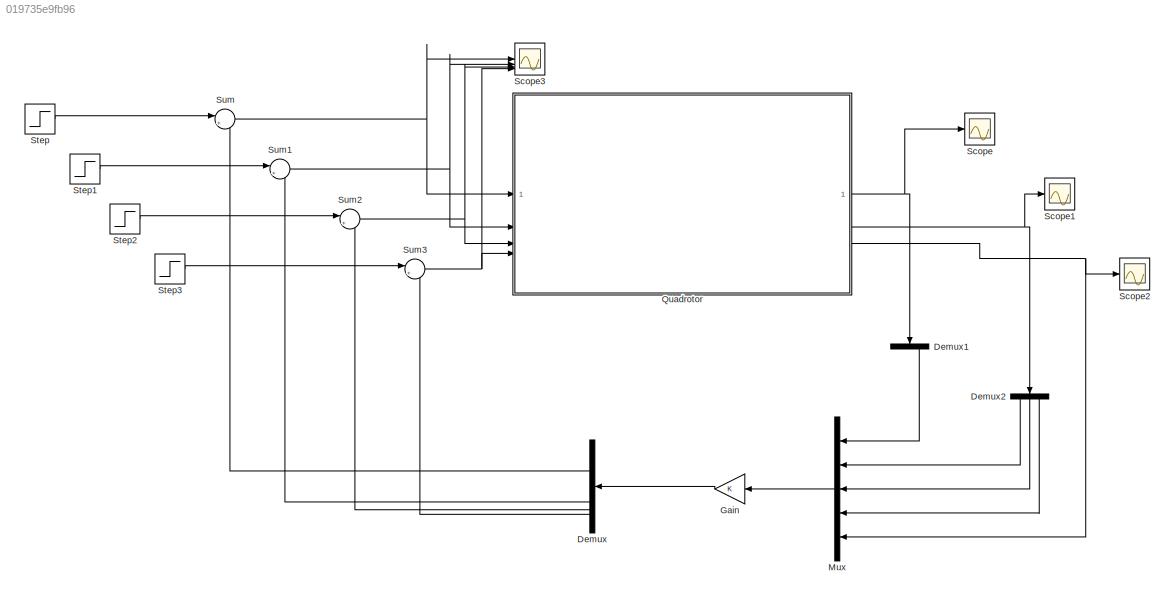
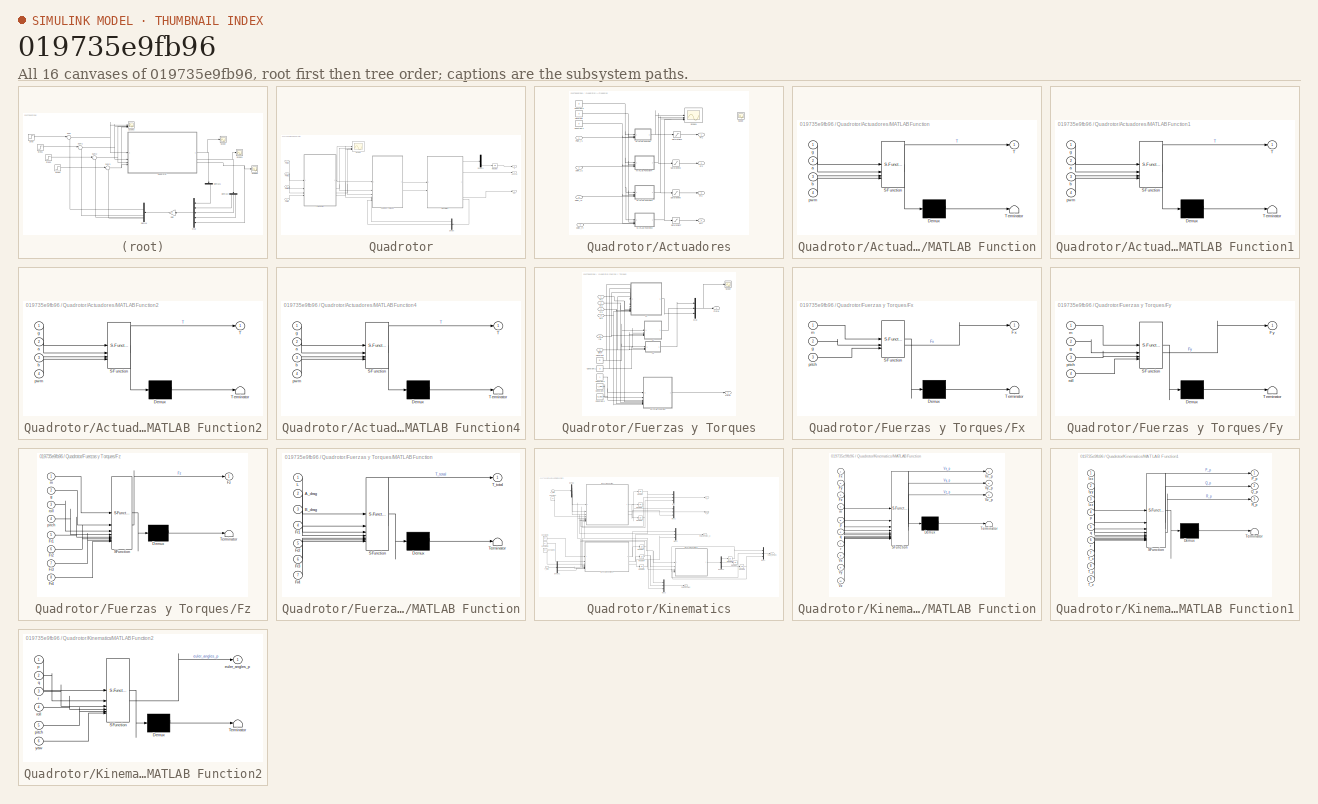
[diagram: thumbnail index - all 16 canvases of the model, root first then tree order]
MODEL slx_019735e9fb96
KIND model
CONFIG AbsTol = auto
CONFIG EnableMultiTasking = off
CONFIG FixedStep = auto
CONFIG MaxStep = auto
CONFIG MinStep = auto
CONFIG RelTol = 1e-3
CONFIG SampleTimeConstraint = Unconstrained
CONFIG SolverName = VariableStepAuto
CONFIG StartTime = 0.0
CONFIG StopTime = 10.0
BLOCK [Demux] Demux
  NameLocation = top
BLOCK [Demux] Demux1
  NameLocation = left
  Outputs = 3
BLOCK [Demux] Demux2
  NameLocation = left
  Outputs = 3
BLOCK [Gain] Gain
  Gain = K
  Multiplication = Matrix(K*u)
  NameLocation = top
BLOCK [Mux] Mux
  DisplayOption = bar
  Inputs = 5
  NameLocation = top
BLOCK [SubSystem] Quadrotor
BLOCK [SubSystem] Quadrotor/Actuadores
BLOCK [Constant] Quadrotor/Actuadores/Constant
  Value = a
BLOCK [Constant] Quadrotor/Actuadores/Constant1
  Value = b
BLOCK [Constant] Quadrotor/Actuadores/Constant2
  Value = g
BLOCK [Outport] Quadrotor/Actuadores/Fr1
BLOCK [Outport] Quadrotor/Actuadores/Fr2
  Port = 2
BLOCK [Outport] Quadrotor/Actuadores/Fr3
  Port = 3
BLOCK [Outport] Quadrotor/Actuadores/Fr4
  Port = 4
BLOCK [SubSystem] Quadrotor/Actuadores/MATLAB Function
  ErrorFcn = Stateflow.Translate.translate
  PermitHierarchicalResolution = ExplicitOnly
  SFBlockType = MATLAB Function
  TreatAsAtomicUnit = on
BLOCK [Demux] Quadrotor/Actuadores/MATLAB Function/ Demux 
  Outputs = 1
BLOCK [S-Function] Quadrotor/Actuadores/MATLAB Function/ SFunction 
  EnableBusSupport = on
  FunctionName = sf_sfun
  PortCounts = [4 2]
  SFcnIsStateOwnerBlock = off
  SFunctionDeploymentMode = off
  Tag = Stateflow S-Function 2
BLOCK [Terminator] Quadrotor/Actuadores/MATLAB Function/ Terminator 
BLOCK [Outport] Quadrotor/Actuadores/MATLAB Function/T
BLOCK [Inport] Quadrotor/Actuadores/MATLAB Function/a
  Port = 2
BLOCK [Inport] Quadrotor/Actuadores/MATLAB Function/b
  Port = 3
BLOCK [Inport] Quadrotor/Actuadores/MATLAB Function/g
BLOCK [Inport] Quadrotor/Actuadores/MATLAB Function/pwm
  Port = 4
BLOCK [SubSystem] Quadrotor/Actuadores/MATLAB Function1
  ErrorFcn = Stateflow.Translate.translate
  PermitHierarchicalResolution = ExplicitOnly
  SFBlockType = MATLAB Function
  TreatAsAtomicUnit = on
BLOCK [Demux] Quadrotor/Actuadores/MATLAB Function1/ Demux 
  Outputs = 1
BLOCK [S-Function] Quadrotor/Actuadores/MATLAB Function1/ SFunction 
  EnableBusSupport = on
  FunctionName = sf_sfun
  PortCounts = [4 2]
  SFcnIsStateOwnerBlock = off
  SFunctionDeploymentMode = off
  Tag = Stateflow S-Function 1
BLOCK [Terminator] Quadrotor/Actuadores/MATLAB Function1/ Terminator 
BLOCK [Outport] Quadrotor/Actuadores/MATLAB Function1/T
BLOCK [Inport] Quadrotor/Actuadores/MATLAB Function1/a
  Port = 2
BLOCK [Inport] Quadrotor/Actuadores/MATLAB Function1/b
  Port = 3
BLOCK [Inport] Quadrotor/Actuadores/MATLAB Function1/g
BLOCK [Inport] Quadrotor/Actuadores/MATLAB Function1/pwm
  Port = 4
BLOCK [SubSystem] Quadrotor/Actuadores/MATLAB Function2
  ErrorFcn = Stateflow.Translate.translate
  PermitHierarchicalResolution = ExplicitOnly
  SFBlockType = MATLAB Function
  TreatAsAtomicUnit = on
BLOCK [Demux] Quadrotor/Actuadores/MATLAB Function2/ Demux 
  Outputs = 1
BLOCK [S-Function] Quadrotor/Actuadores/MATLAB Function2/ SFunction 
  EnableBusSupport = on
  FunctionName = sf_sfun
  PortCounts = [4 2]
  SFcnIsStateOwnerBlock = off
  SFunctionDeploymentMode = off
  Tag = Stateflow S-Function 3
BLOCK [Terminator] Quadrotor/Actuadores/MATLAB Function2/ Terminator 
BLOCK [Outport] Quadrotor/Actuadores/MATLAB Function2/T
BLOCK [Inport] Quadrotor/Actuadores/MATLAB Function2/a
  Port = 2
BLOCK [Inport] Quadrotor/Actuadores/MATLAB Function2/b
  Port = 3
BLOCK [Inport] Quadrotor/Actuadores/MATLAB Function2/g
BLOCK [Inport] Quadrotor/Actuadores/MATLAB Function2/pwm
  Port = 4
BLOCK [SubSystem] Quadrotor/Actuadores/MATLAB Function4
  ErrorFcn = Stateflow.Translate.translate
  PermitHierarchicalResolution = ExplicitOnly
  SFBlockType = MATLAB Function
  TreatAsAtomicUnit = on
BLOCK [Demux] Quadrotor/Actuadores/MATLAB Function4/ Demux 
  Outputs = 1
BLOCK [S-Function] Quadrotor/Actuadores/MATLAB Function4/ SFunction 
  EnableBusSupport = on
  FunctionName = sf_sfun
  PortCounts = [4 2]
  SFcnIsStateOwnerBlock = off
  SFunctionDeploymentMode = off
  Tag = Stateflow S-Function 5
BLOCK [Terminator] Quadrotor/Actuadores/MATLAB Function4/ Terminator 
BLOCK [Outport] Quadrotor/Actuadores/MATLAB Function4/T
BLOCK [Inport] Quadrotor/Actuadores/MATLAB Function4/a
  Port = 2
BLOCK [Inport] Quadrotor/Actuadores/MATLAB Function4/b
  Port = 3
BLOCK [Inport] Quadrotor/Actuadores/MATLAB Function4/g
BLOCK [Inport] Quadrotor/Actuadores/MATLAB Function4/pwm
  Port = 4
BLOCK [Inport] Quadrotor/Actuadores/Pwm_r1
BLOCK [Saturate] Quadrotor/Actuadores/Saturation1
  LowerLimit = 0
  UpperLimit = 10
  ZeroCross = off
BLOCK [Saturate] Quadrotor/Actuadores/Saturation3
  LowerLimit = 0
  UpperLimit = 10
  ZeroCross = off
BLOCK [Saturate] Quadrotor/Actuadores/Saturation5
  LowerLimit = 0
  UpperLimit = 10
  ZeroCross = off
BLOCK [Saturate] Quadrotor/Actuadores/Saturation7
  LowerLimit = 0
  UpperLimit = 10
  ZeroCross = off
BLOCK [Scope] Quadrotor/Actuadores/Scope
  Floating = off
  NumInputPorts = 1
  ScopeSpecificationString = Simulink.scopes.TimeScopeBlockCfg('CurrentConfiguration', extmgr.ConfigurationSet(extmgr.Configuration('Core','General UI',true),extmgr.Configuration('Core','Source UI',true),extmgr.Configuration('Sources','WiredSimulink',true,'DataLoggingVariableName','ScopeData3'),extmgr.Configuration('Visuals','Time Domain',true,'SerializedDisplays',{struct('MinYLimReal','-1.00000','MaxYLimReal','1.00000','YLab...<+3470ch>
BLOCK [Scope] Quadrotor/Actuadores/Scope1
  Floating = off
  NumInputPorts = 4
  ScopeSpecificationString = Simulink.scopes.TimeScopeBlockCfg('CurrentConfiguration', extmgr.ConfigurationSet(extmgr.Configuration('Core','General UI',true),extmgr.Configuration('Core','Source UI',true),extmgr.Configuration('Sources','WiredSimulink',true,'DataLoggingVariableName','ScopeData4'),extmgr.Configuration('Visuals','Time Domain',true,'SerializedDisplays',{struct('MinYLimReal','-15178.54692','MaxYLimReal','1645.65995...<+3546ch>
BLOCK [Inport] Quadrotor/Actuadores/pwm_r2
  Port = 2
BLOCK [Inport] Quadrotor/Actuadores/pwm_r3
  Port = 3
BLOCK [Inport] Quadrotor/Actuadores/pwm_r4
  Port = 4
BLOCK [Outport] Quadrotor/Ax Ay Az
BLOCK [Demux] Quadrotor/Demux
  NameLocation = top
  Outputs = 3
BLOCK [Demux] Quadrotor/Demux1
  Outputs = 3
BLOCK [SubSystem] Quadrotor/Fuerzas y Torques
BLOCK [Constant] Quadrotor/Fuerzas y Torques/Constant
  Value = m
BLOCK [Constant] Quadrotor/Fuerzas y Torques/Constant1
  Value = g
BLOCK [Constant] Quadrotor/Fuerzas y Torques/Constant2
  Value = L
BLOCK [Constant] Quadrotor/Fuerzas y Torques/Constant3
  Value = A_drag
BLOCK [Constant] Quadrotor/Fuerzas y Torques/Constant4
  Value = B_drag
BLOCK [Inport] Quadrotor/Fuerzas y Torques/Fr1
BLOCK [Inport] Quadrotor/Fuerzas y Torques/Fr2
  Port = 2
BLOCK [Inport] Quadrotor/Fuerzas y Torques/Fr3
  Port = 3
BLOCK [Inport] Quadrotor/Fuerzas y Torques/Fr4
  Port = 4
BLOCK [Outport] Quadrotor/Fuerzas y Torques/Ftotal
BLOCK [SubSystem] Quadrotor/Fuerzas y Torques/Fx
  ErrorFcn = Stateflow.Translate.translate
  PermitHierarchicalResolution = ExplicitOnly
  SFBlockType = MATLAB Function
  TreatAsAtomicUnit = on
BLOCK [Demux] Quadrotor/Fuerzas y Torques/Fx/ Demux 
  Outputs = 1
BLOCK [S-Function] Quadrotor/Fuerzas y Torques/Fx/ SFunction 
  EnableBusSupport = on
  FunctionName = sf_sfun
  PortCounts = [3 2]
  SFcnIsStateOwnerBlock = off
  SFunctionDeploymentMode = off
  Tag = Stateflow S-Function 4
BLOCK [Terminator] Quadrotor/Fuerzas y Torques/Fx/ Terminator 
BLOCK [Outport] Quadrotor/Fuerzas y Torques/Fx/Fx
BLOCK [Inport] Quadrotor/Fuerzas y Torques/Fx/g
  Port = 2
BLOCK [Inport] Quadrotor/Fuerzas y Torques/Fx/m
BLOCK [Inport] Quadrotor/Fuerzas y Torques/Fx/pitch
  Port = 3
BLOCK [SubSystem] Quadrotor/Fuerzas y Torques/Fy
  ErrorFcn = Stateflow.Translate.translate
  PermitHierarchicalResolution = ExplicitOnly
  SFBlockType = MATLAB Function
  TreatAsAtomicUnit = on
BLOCK [Demux] Quadrotor/Fuerzas y Torques/Fy/ Demux 
  Outputs = 1
BLOCK [S-Function] Quadrotor/Fuerzas y Torques/Fy/ SFunction 
  EnableBusSupport = on
  FunctionName = sf_sfun
  PortCounts = [4 2]
  SFcnIsStateOwnerBlock = off
  SFunctionDeploymentMode = off
  Tag = Stateflow S-Function 6
BLOCK [Terminator] Quadrotor/Fuerzas y Torques/Fy/ Terminator 
BLOCK [Outport] Quadrotor/Fuerzas y Torques/Fy/Fy
BLOCK [Inport] Quadrotor/Fuerzas y Torques/Fy/g
  Port = 2
BLOCK [Inport] Quadrotor/Fuerzas y Torques/Fy/m
BLOCK [Inport] Quadrotor/Fuerzas y Torques/Fy/pitch
  Port = 3
BLOCK [Inport] Quadrotor/Fuerzas y Torques/Fy/roll
  Port = 4
BLOCK [SubSystem] Quadrotor/Fuerzas y Torques/Fz
  ErrorFcn = Stateflow.Translate.translate
  PermitHierarchicalResolution = ExplicitOnly
  SFBlockType = MATLAB Function
  TreatAsAtomicUnit = on
BLOCK [Demux] Quadrotor/Fuerzas y Torques/Fz/ Demux 
  Outputs = 1
BLOCK [S-Function] Quadrotor/Fuerzas y Torques/Fz/ SFunction 
  EnableBusSupport = on
  FunctionName = sf_sfun
  PortCounts = [8 2]
  SFcnIsStateOwnerBlock = off
  SFunctionDeploymentMode = off
  Tag = Stateflow S-Function 7
BLOCK [Terminator] Quadrotor/Fuerzas y Torques/Fz/ Terminator 
BLOCK [Inport] Quadrotor/Fuerzas y Torques/Fz/Fr1
  Port = 5
BLOCK [Inport] Quadrotor/Fuerzas y Torques/Fz/Fr2
  Port = 6
BLOCK [Inport] Quadrotor/Fuerzas y Torques/Fz/Fr3
  Port = 7
BLOCK [Inport] Quadrotor/Fuerzas y Torques/Fz/Fr4
  Port = 8
BLOCK [Outport] Quadrotor/Fuerzas y Torques/Fz/Fz
BLOCK [Inport] Quadrotor/Fuerzas y Torques/Fz/g
  Port = 2
BLOCK [Inport] Quadrotor/Fuerzas y Torques/Fz/m
BLOCK [Inport] Quadrotor/Fuerzas y Torques/Fz/pitch
  Port = 4
BLOCK [Inport] Quadrotor/Fuerzas y Torques/Fz/roll
  Port = 3
BLOCK [SubSystem] Quadrotor/Fuerzas y Torques/MATLAB Function
  ErrorFcn = Stateflow.Translate.translate
  PermitHierarchicalResolution = ExplicitOnly
  SFBlockType = MATLAB Function
  TreatAsAtomicUnit = on
BLOCK [Demux] Quadrotor/Fuerzas y Torques/MATLAB Function/ Demux 
  Outputs = 1
BLOCK [S-Function] Quadrotor/Fuerzas y Torques/MATLAB Function/ SFunction 
  EnableBusSupport = on
  FunctionName = sf_sfun
  PortCounts = [7 2]
  SFcnIsStateOwnerBlock = off
  SFunctionDeploymentMode = off
  Tag = Stateflow S-Function 8
BLOCK [Terminator] Quadrotor/Fuerzas y Torques/MATLAB Function/ Terminator 
BLOCK [Inport] Quadrotor/Fuerzas y Torques/MATLAB Function/A_drag
  Port = 2
BLOCK [Inport] Quadrotor/Fuerzas y Torques/MATLAB Function/B_drag
  Port = 3
BLOCK [Inport] Quadrotor/Fuerzas y Torques/MATLAB Function/Fr1
  Port = 4
BLOCK [Inport] Quadrotor/Fuerzas y Torques/MATLAB Function/Fr2
  Port = 5
BLOCK [Inport] Quadrotor/Fuerzas y Torques/MATLAB Function/Fr3
  Port = 6
BLOCK [Inport] Quadrotor/Fuerzas y Torques/MATLAB Function/Fr4
  Port = 7
BLOCK [Inport] Quadrotor/Fuerzas y Torques/MATLAB Function/L
BLOCK [Outport] Quadrotor/Fuerzas y Torques/MATLAB Function/T_total
BLOCK [Mux] Quadrotor/Fuerzas y Torques/Mux
  DisplayOption = bar
  Inputs = 3
BLOCK [Scope] Quadrotor/Fuerzas y Torques/Scope
  Floating = off
  NumInputPorts = 1
  ScopeSpecificationString = Simulink.scopes.TimeScopeBlockCfg('CurrentConfiguration', extmgr.ConfigurationSet(extmgr.Configuration('Core','General UI',true),extmgr.Configuration('Core','Source UI',true),extmgr.Configuration('Sources','WiredSimulink',true,'DataLoggingVariableName','ScopeData2'),extmgr.Configuration('Visuals','Time Domain',true,'SerializedDisplays',{struct('MinYLimReal','-2.45','MaxYLimReal','0.27222','YLabelR...<+1727ch>
BLOCK [Outport] Quadrotor/Fuerzas y Torques/Ttotal
  Port = 2
BLOCK [Inport] Quadrotor/Fuerzas y Torques/pitch
  Port = 6
BLOCK [Inport] Quadrotor/Fuerzas y Torques/roll
  Port = 5
BLOCK [Integrator] Quadrotor/Integrator
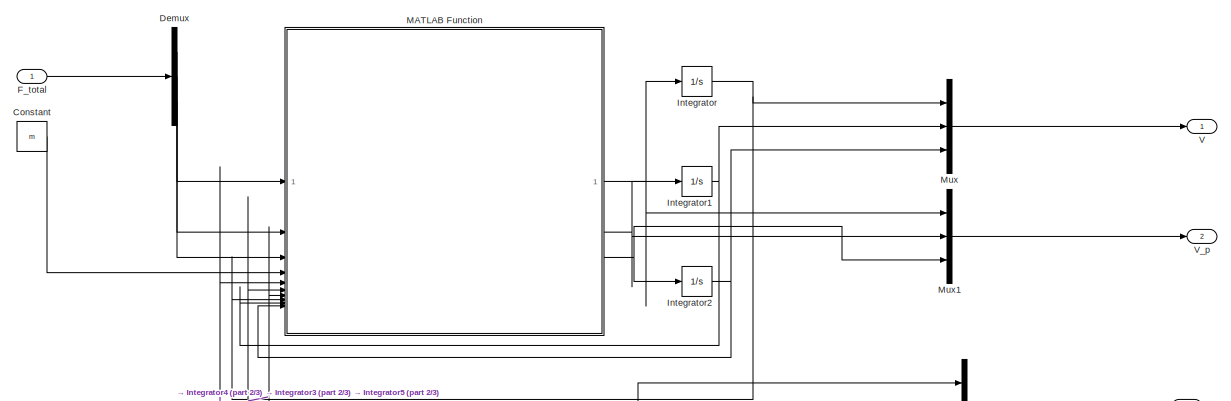
[diagram: Quadrotor/Kinematics - part 1/3, top center region]
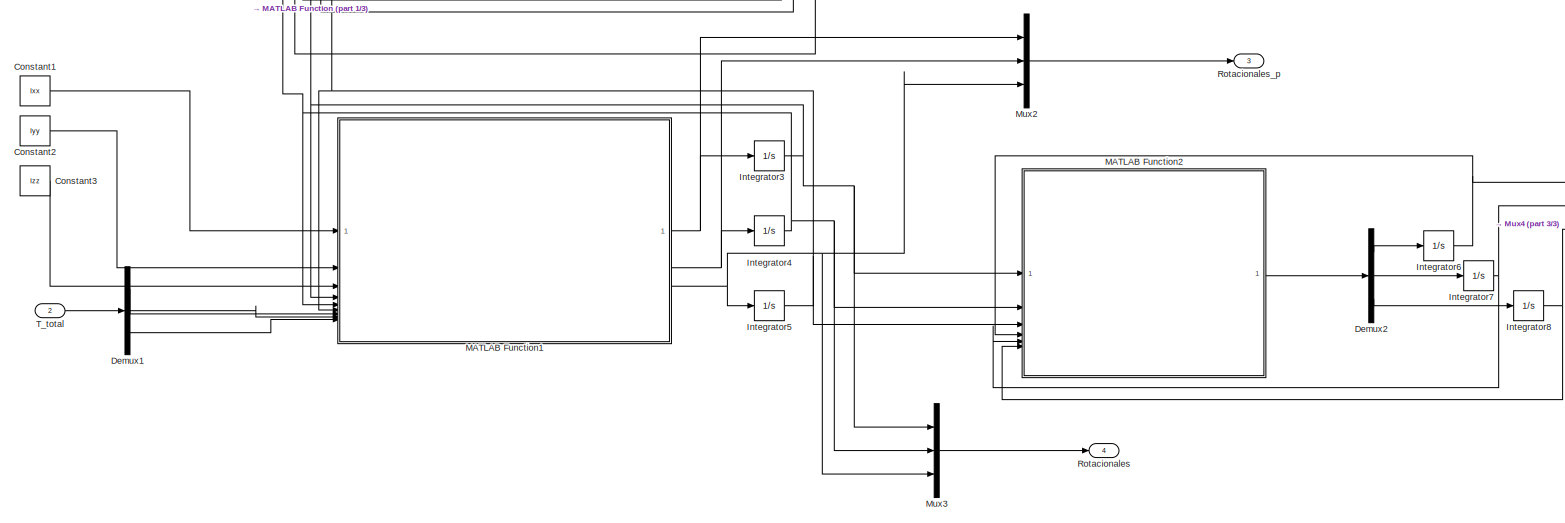
[diagram: Quadrotor/Kinematics - part 2/3, full width, bottom band]
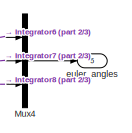
[diagram: Quadrotor/Kinematics - part 3/3, middle right region]
BLOCK [SubSystem] Quadrotor/Kinematics
BLOCK [Constant] Quadrotor/Kinematics/Constant
  Value = m
BLOCK [Constant] Quadrotor/Kinematics/Constant1
  Value = Ixx
BLOCK [Constant] Quadrotor/Kinematics/Constant2
  Value = Iyy
BLOCK [Constant] Quadrotor/Kinematics/Constant3
  Value = Izz
BLOCK [Demux] Quadrotor/Kinematics/Demux
  Outputs = 3
BLOCK [Demux] Quadrotor/Kinematics/Demux1
  Outputs = 3
BLOCK [Demux] Quadrotor/Kinematics/Demux2
  Outputs = 3
BLOCK [Inport] Quadrotor/Kinematics/F_total
BLOCK [Integrator] Quadrotor/Kinematics/Integrator
BLOCK [Integrator] Quadrotor/Kinematics/Integrator1
BLOCK [Integrator] Quadrotor/Kinematics/Integrator2
BLOCK [Integrator] Quadrotor/Kinematics/Integrator3
BLOCK [Integrator] Quadrotor/Kinematics/Integrator4
BLOCK [Integrator] Quadrotor/Kinematics/Integrator5
BLOCK [Integrator] Quadrotor/Kinematics/Integrator6
BLOCK [Integrator] Quadrotor/Kinematics/Integrator7
BLOCK [Integrator] Quadrotor/Kinematics/Integrator8
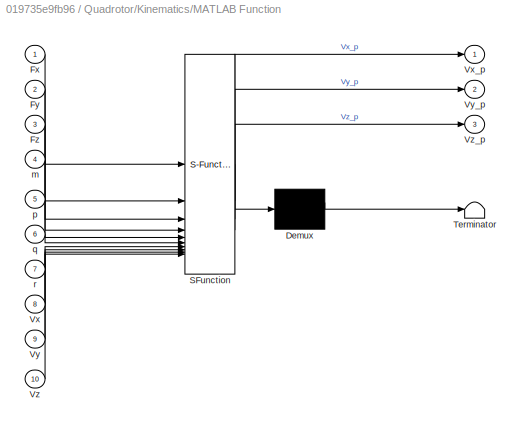
BLOCK [SubSystem] Quadrotor/Kinematics/MATLAB Function
  ErrorFcn = Stateflow.Translate.translate
  PermitHierarchicalResolution = ExplicitOnly
  SFBlockType = MATLAB Function
  TreatAsAtomicUnit = on
BLOCK [Demux] Quadrotor/Kinematics/MATLAB Function/ Demux 
  Outputs = 1
BLOCK [S-Function] Quadrotor/Kinematics/MATLAB Function/ SFunction 
  EnableBusSupport = on
  FunctionName = sf_sfun
  PortCounts = [10 4]
  SFcnIsStateOwnerBlock = off
  SFunctionDeploymentMode = off
  Tag = Stateflow S-Function 9
BLOCK [Terminator] Quadrotor/Kinematics/MATLAB Function/ Terminator 
BLOCK [Inport] Quadrotor/Kinematics/MATLAB Function/Fx
BLOCK [Inport] Quadrotor/Kinematics/MATLAB Function/Fy
  Port = 2
BLOCK [Inport] Quadrotor/Kinematics/MATLAB Function/Fz
  Port = 3
BLOCK [Inport] Quadrotor/Kinematics/MATLAB Function/Vx
  Port = 8
BLOCK [Outport] Quadrotor/Kinematics/MATLAB Function/Vx_p
BLOCK [Inport] Quadrotor/Kinematics/MATLAB Function/Vy
  Port = 9
BLOCK [Outport] Quadrotor/Kinematics/MATLAB Function/Vy_p
  Port = 2
BLOCK [Inport] Quadrotor/Kinematics/MATLAB Function/Vz
  Port = 10
BLOCK [Outport] Quadrotor/Kinematics/MATLAB Function/Vz_p
  Port = 3
BLOCK [Inport] Quadrotor/Kinematics/MATLAB Function/m
  Port = 4
BLOCK [Inport] Quadrotor/Kinematics/MATLAB Function/p
  Port = 5
BLOCK [Inport] Quadrotor/Kinematics/MATLAB Function/q
  Port = 6
BLOCK [Inport] Quadrotor/Kinematics/MATLAB Function/r
  Port = 7
BLOCK [SubSystem] Quadrotor/Kinematics/MATLAB Function1
  ErrorFcn = Stateflow.Translate.translate
  PermitHierarchicalResolution = ExplicitOnly
  SFBlockType = MATLAB Function
  TreatAsAtomicUnit = on
BLOCK [Demux] Quadrotor/Kinematics/MATLAB Function1/ Demux 
  Outputs = 1
BLOCK [S-Function] Quadrotor/Kinematics/MATLAB Function1/ SFunction 
  EnableBusSupport = on
  FunctionName = sf_sfun
  PortCounts = [9 4]
  SFcnIsStateOwnerBlock = off
  SFunctionDeploymentMode = off
  Tag = Stateflow S-Function 10
BLOCK [Terminator] Quadrotor/Kinematics/MATLAB Function1/ Terminator 
BLOCK [Inport] Quadrotor/Kinematics/MATLAB Function1/Ixx
BLOCK [Inport] Quadrotor/Kinematics/MATLAB Function1/Iyy
  Port = 2
BLOCK [Inport] Quadrotor/Kinematics/MATLAB Function1/Izz
  Port = 3
BLOCK [Outport] Quadrotor/Kinematics/MATLAB Function1/P_p
BLOCK [Outport] Quadrotor/Kinematics/MATLAB Function1/Q_p
  Port = 2
BLOCK [Outport] Quadrotor/Kinematics/MATLAB Function1/R_p
  Port = 3
BLOCK [Inport] Quadrotor/Kinematics/MATLAB Function1/T_x
  Port = 7
BLOCK [Inport] Quadrotor/Kinematics/MATLAB Function1/T_y
  Port = 8
BLOCK [Inport] Quadrotor/Kinematics/MATLAB Function1/T_z
  Port = 9
BLOCK [Inport] Quadrotor/Kinematics/MATLAB Function1/p
  Port = 4
BLOCK [Inport] Quadrotor/Kinematics/MATLAB Function1/q
  Port = 5
BLOCK [Inport] Quadrotor/Kinematics/MATLAB Function1/r
  Port = 6
BLOCK [SubSystem] Quadrotor/Kinematics/MATLAB Function2
  ErrorFcn = Stateflow.Translate.translate
  PermitHierarchicalResolution = ExplicitOnly
  SFBlockType = MATLAB Function
  TreatAsAtomicUnit = on
BLOCK [Demux] Quadrotor/Kinematics/MATLAB Function2/ Demux 
  Outputs = 1
BLOCK [S-Function] Quadrotor/Kinematics/MATLAB Function2/ SFunction 
  EnableBusSupport = on
  FunctionName = sf_sfun
  PortCounts = [6 2]
  SFcnIsStateOwnerBlock = off
  SFunctionDeploymentMode = off
  Tag = Stateflow S-Function 11
BLOCK [Terminator] Quadrotor/Kinematics/MATLAB Function2/ Terminator 
BLOCK [Outport] Quadrotor/Kinematics/MATLAB Function2/euler_angles_p
BLOCK [Inport] Quadrotor/Kinematics/MATLAB Function2/p
BLOCK [Inport] Quadrotor/Kinematics/MATLAB Function2/pitch
  Port = 5
BLOCK [Inport] Quadrotor/Kinematics/MATLAB Function2/q
  Port = 2
BLOCK [Inport] Quadrotor/Kinematics/MATLAB Function2/r
  Port = 3
BLOCK [Inport] Quadrotor/Kinematics/MATLAB Function2/roll
  Port = 4
BLOCK [Inport] Quadrotor/Kinematics/MATLAB Function2/yaw
  Port = 6
BLOCK [Mux] Quadrotor/Kinematics/Mux
  DisplayOption = bar
  Inputs = 3
BLOCK [Mux] Quadrotor/Kinematics/Mux1
  DisplayOption = bar
  Inputs = 3
BLOCK [Mux] Quadrotor/Kinematics/Mux2
  DisplayOption = bar
  Inputs = 3
BLOCK [Mux] Quadrotor/Kinematics/Mux3
  DisplayOption = bar
  Inputs = 3
BLOCK [Mux] Quadrotor/Kinematics/Mux4
  DisplayOption = bar
  Inputs = 3
BLOCK [Outport] Quadrotor/Kinematics/Rotacionales
  Port = 4
BLOCK [Outport] Quadrotor/Kinematics/Rotacionales_p
  Port = 3
BLOCK [Inport] Quadrotor/Kinematics/T_total
  Port = 2
BLOCK [Outport] Quadrotor/Kinematics/V
BLOCK [Outport] Quadrotor/Kinematics/V_p
  Port = 2
BLOCK [Outport] Quadrotor/Kinematics/euler_angles
  Port = 5
BLOCK [Inport] Quadrotor/PWM1
BLOCK [Inport] Quadrotor/PWM2
  Port = 2
BLOCK [Inport] Quadrotor/PWM3
  Port = 3
BLOCK [Inport] Quadrotor/PWM4
  Port = 4
BLOCK [Scope] Quadrotor/Scope
  Floating = off
  NumInputPorts = 4
  ScopeSpecificationString = Simulink.scopes.TimeScopeBlockCfg('CurrentConfiguration', extmgr.ConfigurationSet(extmgr.Configuration('Core','General UI',true),extmgr.Configuration('Core','Source UI',true),extmgr.Configuration('Sources','WiredSimulink',true),extmgr.Configuration('Visuals','Time Domain',true,'SerializedDisplays',{struct('MinYLimReal','-1.00000','MaxYLimReal','1.00000','YLabelReal','','MinYLimMag','0.00000','MaxY...<+3360ch>
BLOCK [Outport] Quadrotor/Z
  Port = 3
BLOCK [Outport] Quadrotor/p q r
  Port = 2
BLOCK [Scope] Scope
  Floating = off
  NumInputPorts = 1
  ScopeSpecificationString = Simulink.scopes.TimeScopeBlockCfg('CurrentConfiguration', extmgr.ConfigurationSet(extmgr.Configuration('Core','General UI',true),extmgr.Configuration('Core','Source UI',true),extmgr.Configuration('Sources','WiredSimulink',true,'DataLoggingVariableName','ScopeData1'),extmgr.Configuration('Visuals','Time Domain',true,'SerializedDisplays',{struct('MinYLimReal','-11.025','MaxYLimReal','1.225','YLabelR...<+1431ch>
BLOCK [Scope] Scope1
  Floating = off
  NumInputPorts = 1
  ScopeSpecificationString = Simulink.scopes.TimeScopeBlockCfg('CurrentConfiguration', extmgr.ConfigurationSet(extmgr.Configuration('Core','General UI',true),extmgr.Configuration('Core','Source UI',true),extmgr.Configuration('Sources','WiredSimulink',true,'DataLoggingVariableName','ScopeData2'),extmgr.Configuration('Visuals','Time Domain',true,'SerializedDisplays',{struct('MinYLimReal','-1.00000','MaxYLimReal','1.00000','YLab...<+1439ch>
BLOCK [Scope] Scope2
  Floating = off
  NumInputPorts = 1
  ScopeSpecificationString = Simulink.scopes.TimeScopeBlockCfg('CurrentConfiguration', extmgr.ConfigurationSet(extmgr.Configuration('Core','General UI',true),extmgr.Configuration('Core','Source UI',true),extmgr.Configuration('Sources','WiredSimulink',true,'DataLoggingVariableName','ScopeData3'),extmgr.Configuration('Visuals','Time Domain',true,'SerializedDisplays',{struct('MinYLimReal','-551.25','MaxYLimReal','61.25','YLabelR...<+2223ch>
BLOCK [Scope] Scope3
  Floating = off
  NumInputPorts = 4
  ScopeSpecificationString = Simulink.scopes.TimeScopeBlockCfg('CurrentConfiguration', extmgr.ConfigurationSet(extmgr.Configuration('Core','General UI',true),extmgr.Configuration('Core','Source UI',true),extmgr.Configuration('Sources','WiredSimulink',true,'DataLoggingVariableName','ScopeData1'),extmgr.Configuration('Visuals','Time Domain',true,'SerializedDisplays',{struct('MinYLimReal','-10','MaxYLimReal','10','YLabelReal',''...<+3485ch>
BLOCK [Step] Step
  After = Po
  SampleTime = 0
  Time = 0
BLOCK [Step] Step1
  After = Po
  SampleTime = 0
  Time = 0
BLOCK [Step] Step2
  After = Po
  SampleTime = 0
  Time = 0
BLOCK [Step] Step3
  After = Po
  SampleTime = 0
  Time = 0
BLOCK [Sum] Sum
  Inputs = |++
BLOCK [Sum] Sum1
  Inputs = |++
BLOCK [Sum] Sum2
  Inputs = |++
BLOCK [Sum] Sum3
  Inputs = |++
LINE Demux1:3 -> Mux:1
LINE Demux2:1 -> Mux:2
LINE Demux2:2 -> Mux:3
LINE Demux2:3 -> Mux:4
LINE Demux:1 -> Sum:2
LINE Demux:2 -> Sum1:2
LINE Demux:3 -> Sum2:2
LINE Demux:4 -> Sum3:2
LINE Gain:1 -> Demux:1
LINE Mux:1 -> Gain:1
NET Quadrotor/Actuadores/Constant1:1 -> Quadrotor/Actuadores/MATLAB Function1:3, Quadrotor/Actuadores/MATLAB Function2:3, Quadrotor/Actuadores/MATLAB Function4:3, Quadrotor/Actuadores/MATLAB Function:3
NET Quadrotor/Actuadores/Constant2:1 -> Quadrotor/Actuadores/MATLAB Function1:1, Quadrotor/Actuadores/MATLAB Function2:1, Quadrotor/Actuadores/MATLAB Function4:1, Quadrotor/Actuadores/MATLAB Function:1
NET Quadrotor/Actuadores/Constant:1 -> Quadrotor/Actuadores/MATLAB Function1:2, Quadrotor/Actuadores/MATLAB Function2:2, Quadrotor/Actuadores/MATLAB Function4:2, Quadrotor/Actuadores/MATLAB Function:2
NET Quadrotor/Actuadores/MATLAB Function1:1 -> Quadrotor/Actuadores/Saturation5:1, Quadrotor/Actuadores/Scope1:3
NET Quadrotor/Actuadores/MATLAB Function2:1 -> Quadrotor/Actuadores/Saturation7:1, Quadrotor/Actuadores/Scope1:4
NET Quadrotor/Actuadores/MATLAB Function4:1 -> Quadrotor/Actuadores/Saturation3:1, Quadrotor/Actuadores/Scope1:2
NET Quadrotor/Actuadores/MATLAB Function:1 -> Quadrotor/Actuadores/Saturation1:1, Quadrotor/Actuadores/Scope1:1
LINE Quadrotor/Actuadores/Pwm_r1:1 -> Quadrotor/Actuadores/MATLAB Function:4
LINE Quadrotor/Actuadores/Saturation1:1 -> Quadrotor/Actuadores/Fr1:1
LINE Quadrotor/Actuadores/Saturation3:1 -> Quadrotor/Actuadores/Fr2:1
LINE Quadrotor/Actuadores/Saturation5:1 -> Quadrotor/Actuadores/Fr3:1
LINE Quadrotor/Actuadores/Saturation7:1 -> Quadrotor/Actuadores/Fr4:1
LINE Quadrotor/Actuadores/pwm_r2:1 -> Quadrotor/Actuadores/MATLAB Function4:4
LINE Quadrotor/Actuadores/pwm_r3:1 -> Quadrotor/Actuadores/MATLAB Function1:4
LINE Quadrotor/Actuadores/pwm_r4:1 -> Quadrotor/Actuadores/MATLAB Function2:4
NET Quadrotor/Actuadores:1 -> Quadrotor/Fuerzas y Torques:1, Quadrotor/Scope:1
NET Quadrotor/Actuadores:2 -> Quadrotor/Fuerzas y Torques:2, Quadrotor/Scope:2
NET Quadrotor/Actuadores:3 -> Quadrotor/Fuerzas y Torques:3, Quadrotor/Scope:3
NET Quadrotor/Actuadores:4 -> Quadrotor/Fuerzas y Torques:4, Quadrotor/Scope:4
LINE Quadrotor/Demux1:3 -> Quadrotor/Integrator:1
LINE Quadrotor/Demux:1 -> Quadrotor/Fuerzas y Torques:5
LINE Quadrotor/Demux:2 -> Quadrotor/Fuerzas y Torques:6
NET Quadrotor/Fuerzas y Torques/Constant1:1 -> Quadrotor/Fuerzas y Torques/Fx:2, Quadrotor/Fuerzas y Torques/Fy:2, Quadrotor/Fuerzas y Torques/Fz:2
LINE Quadrotor/Fuerzas y Torques/Constant2:1 -> Quadrotor/Fuerzas y Torques/MATLAB Function:1
LINE Quadrotor/Fuerzas y Torques/Constant3:1 -> Quadrotor/Fuerzas y Torques/MATLAB Function:2
LINE Quadrotor/Fuerzas y Torques/Constant4:1 -> Quadrotor/Fuerzas y Torques/MATLAB Function:3
NET Quadrotor/Fuerzas y Torques/Constant:1 -> Quadrotor/Fuerzas y Torques/Fx:1, Quadrotor/Fuerzas y Torques/Fy:1, Quadrotor/Fuerzas y Torques/Fz:1
NET Quadrotor/Fuerzas y Torques/Fr1:1 -> Quadrotor/Fuerzas y Torques/Fz:5, Quadrotor/Fuerzas y Torques/MATLAB Function:4
NET Quadrotor/Fuerzas y Torques/Fr2:1 -> Quadrotor/Fuerzas y Torques/Fz:6, Quadrotor/Fuerzas y Torques/MATLAB Function:5
NET Quadrotor/Fuerzas y Torques/Fr3:1 -> Quadrotor/Fuerzas y Torques/Fz:7, Quadrotor/Fuerzas y Torques/MATLAB Function:6
NET Quadrotor/Fuerzas y Torques/Fr4:1 -> Quadrotor/Fuerzas y Torques/Fz:8, Quadrotor/Fuerzas y Torques/MATLAB Function:7
LINE Quadrotor/Fuerzas y Torques/Fx:1 -> Quadrotor/Fuerzas y Torques/Mux:1
LINE Quadrotor/Fuerzas y Torques/Fy:1 -> Quadrotor/Fuerzas y Torques/Mux:2
LINE Quadrotor/Fuerzas y Torques/Fz:1 -> Quadrotor/Fuerzas y Torques/Mux:3
LINE Quadrotor/Fuerzas y Torques/MATLAB Function:1 -> Quadrotor/Fuerzas y Torques/Ttotal:1
NET Quadrotor/Fuerzas y Torques/Mux:1 -> Quadrotor/Fuerzas y Torques/Ftotal:1, Quadrotor/Fuerzas y Torques/Scope:1
NET Quadrotor/Fuerzas y Torques/pitch:1 -> Quadrotor/Fuerzas y Torques/Fx:3, Quadrotor/Fuerzas y Torques/Fy:3, Quadrotor/Fuerzas y Torques/Fz:4
NET Quadrotor/Fuerzas y Torques/roll:1 -> Quadrotor/Fuerzas y Torques/Fy:4, Quadrotor/Fuerzas y Torques/Fz:3
LINE Quadrotor/Fuerzas y Torques:1 -> Quadrotor/Kinematics:1
LINE Quadrotor/Fuerzas y Torques:2 -> Quadrotor/Kinematics:2
LINE Quadrotor/Integrator:1 -> Quadrotor/Z:1
LINE Quadrotor/Kinematics/Constant1:1 -> Quadrotor/Kinematics/MATLAB Function1:1
LINE Quadrotor/Kinematics/Constant2:1 -> Quadrotor/Kinematics/MATLAB Function1:2
LINE Quadrotor/Kinematics/Constant3:1 -> Quadrotor/Kinematics/MATLAB Function1:3
LINE Quadrotor/Kinematics/Constant:1 -> Quadrotor/Kinematics/MATLAB Function:4
LINE Quadrotor/Kinematics/Demux1:1 -> Quadrotor/Kinematics/MATLAB Function1:7
LINE Quadrotor/Kinematics/Demux1:2 -> Quadrotor/Kinematics/MATLAB Function1:8
LINE Quadrotor/Kinematics/Demux1:3 -> Quadrotor/Kinematics/MATLAB Function1:9
LINE Quadrotor/Kinematics/Demux2:1 -> Quadrotor/Kinematics/Integrator6:1
LINE Quadrotor/Kinematics/Demux2:2 -> Quadrotor/Kinematics/Integrator7:1
LINE Quadrotor/Kinematics/Demux2:3 -> Quadrotor/Kinematics/Integrator8:1
LINE Quadrotor/Kinematics/Demux:1 -> Quadrotor/Kinematics/MATLAB Function:1
LINE Quadrotor/Kinematics/Demux:2 -> Quadrotor/Kinematics/MATLAB Function:2
LINE Quadrotor/Kinematics/Demux:3 -> Quadrotor/Kinematics/MATLAB Function:3
LINE Quadrotor/Kinematics/F_total:1 -> Quadrotor/Kinematics/Demux:1
NET Quadrotor/Kinematics/Integrator1:1 -> Quadrotor/Kinematics/MATLAB Function:9, Quadrotor/Kinematics/Mux:2
NET Quadrotor/Kinematics/Integrator2:1 -> Quadrotor/Kinematics/MATLAB Function:10, Quadrotor/Kinematics/Mux:3
NET Quadrotor/Kinematics/Integrator3:1 -> Quadrotor/Kinematics/MATLAB Function1:4, Quadrotor/Kinematics/MATLAB Function2:1, Quadrotor/Kinematics/MATLAB Function:6, Quadrotor/Kinematics/Mux3:1
NET Quadrotor/Kinematics/Integrator4:1 -> Quadrotor/Kinematics/MATLAB Function1:5, Quadrotor/Kinematics/MATLAB Function2:2, Quadrotor/Kinematics/MATLAB Function:5, Quadrotor/Kinematics/Mux3:2
NET Quadrotor/Kinematics/Integrator5:1 -> Quadrotor/Kinematics/MATLAB Function1:6, Quadrotor/Kinematics/MATLAB Function2:3, Quadrotor/Kinematics/MATLAB Function:7
NET Quadrotor/Kinematics/Integrator6:1 -> Quadrotor/Kinematics/MATLAB Function2:4, Quadrotor/Kinematics/Mux4:1
NET Quadrotor/Kinematics/Integrator7:1 -> Quadrotor/Kinematics/MATLAB Function2:5, Quadrotor/Kinematics/Mux4:2
NET Quadrotor/Kinematics/Integrator8:1 -> Quadrotor/Kinematics/MATLAB Function2:6, Quadrotor/Kinematics/Mux4:3
NET Quadrotor/Kinematics/Integrator:1 -> Quadrotor/Kinematics/MATLAB Function:8, Quadrotor/Kinematics/Mux:1
NET Quadrotor/Kinematics/MATLAB Function1:1 -> Quadrotor/Kinematics/Integrator3:1, Quadrotor/Kinematics/Mux2:1
NET Quadrotor/Kinematics/MATLAB Function1:2 -> Quadrotor/Kinematics/Integrator4:1, Quadrotor/Kinematics/Mux2:2
NET Quadrotor/Kinematics/MATLAB Function1:3 -> Quadrotor/Kinematics/Integrator5:1, Quadrotor/Kinematics/Mux2:3, Quadrotor/Kinematics/Mux3:3
LINE Quadrotor/Kinematics/MATLAB Function2:1 -> Quadrotor/Kinematics/Demux2:1
NET Quadrotor/Kinematics/MATLAB Function:1 -> Quadrotor/Kinematics/Integrator:1, Quadrotor/Kinematics/Mux1:1
NET Quadrotor/Kinematics/MATLAB Function:2 -> Quadrotor/Kinematics/Integrator1:1, Quadrotor/Kinematics/Mux1:2
NET Quadrotor/Kinematics/MATLAB Function:3 -> Quadrotor/Kinematics/Integrator2:1, Quadrotor/Kinematics/Mux1:3
LINE Quadrotor/Kinematics/Mux1:1 -> Quadrotor/Kinematics/V_p:1
LINE Quadrotor/Kinematics/Mux2:1 -> Quadrotor/Kinematics/Rotacionales_p:1
LINE Quadrotor/Kinematics/Mux3:1 -> Quadrotor/Kinematics/Rotacionales:1
LINE Quadrotor/Kinematics/Mux4:1 -> Quadrotor/Kinematics/euler_angles:1
LINE Quadrotor/Kinematics/Mux:1 -> Quadrotor/Kinematics/V:1
LINE Quadrotor/Kinematics/T_total:1 -> Quadrotor/Kinematics/Demux1:1
LINE Quadrotor/Kinematics:1 -> Quadrotor/Demux1:1
LINE Quadrotor/Kinematics:2 -> Quadrotor/Ax Ay Az:1
LINE Quadrotor/Kinematics:4 -> Quadrotor/p q r:1
LINE Quadrotor/Kinematics:5 -> Quadrotor/Demux:1
LINE Quadrotor/PWM1:1 -> Quadrotor/Actuadores:1
LINE Quadrotor/PWM2:1 -> Quadrotor/Actuadores:2
LINE Quadrotor/PWM3:1 -> Quadrotor/Actuadores:3
LINE Quadrotor/PWM4:1 -> Quadrotor/Actuadores:4
NET Quadrotor:1 -> Demux1:1, Scope:1
NET Quadrotor:2 -> Demux2:1, Scope1:1
NET Quadrotor:3 -> Mux:5, Scope2:1
LINE Step1:1 -> Sum1:1
LINE Step2:1 -> Sum2:1
LINE Step3:1 -> Sum3:1
LINE Step:1 -> Sum:1
NET Sum1:1 -> Quadrotor:2, Scope3:2
NET Sum2:1 -> Quadrotor:3, Scope3:3
NET Sum3:1 -> Quadrotor:4, Scope3:4
NET Sum:1 -> Quadrotor:1, Scope3:1
note: NET lines group one-source signal fan-out (src -> all destinations, sorted); 1:1 wires keep LINE
CHART Quadrotor/Kinematics/MATLAB Function states=1 transitions=1
  STATE_LABEL 'eML_blk_kernel()'
  STATE_LABEL 'SCRIPT:\nfunction [Vx_p, Vy_p, Vz_p] = fcn(Fx, Fy, Fz, m, p, q, r, Vx, Vy, Vz)\n\nVx_p = 1/m*(Fx-(q*Vz-r*Vy));\nVy_p = 1/m*(Fy-(r*Vx-Vz*p));\nVz_p = 1/m*(Fz-(p*Vz-q*Vx));\n'
CHART Quadrotor/Kinematics/MATLAB Function1 states=1 transitions=1
  STATE_LABEL 'eML_blk_kernel()'
  STATE_LABEL 'SCRIPT:\nfunction [P_p, Q_p, R_p] = fcn(Ixx, Iyy, Izz, p, q, r, T_x, T_y, T_z)\n\n%% Los torques se nombran como\n%T_x = L\n%T_y = M\n%T_z = N\n\nP_p = 1/Ixx*(T_x-(Izz-Iyy)*q*r);\nQ_p = 1/Iyy*(T_y-(Ixx-Izz)*p*r);\nR_p = 1/Izz*(T_z-(Iyy-Ixx)*p*q);\n'
CHART Quadrotor/Kinematics/MATLAB Function2 states=1 transitions=1
  STATE_LABEL 'eML_blk_kernel()'
  STATE_LABEL 'SCRIPT:\nfunction euler_angles_p = fcn(p, q, r, roll, pitch, yaw)\n\neuler_angles_p = [1, sin(roll)* tan(pitch), cos(roll)*tan(pitch);\n        0, cos(roll), -sin(roll);\n        0, -sin(roll)/cos(pitch), cos(roll)/cos(pitch)]*[p;q;r];\n\n'
CHART Quadrotor/Actuadores/MATLAB Function1 states=1 transitions=1
  STATE_LABEL 'eML_blk_kernel()'
  STATE_LABEL 'SCRIPT:\nfunction T = fcn(g,a,b,pwm)\n\nT = (a*pwm+b)*g;\n\n\n'
CHART Quadrotor/Actuadores/MATLAB Function states=1 transitions=1
  STATE_LABEL 'eML_blk_kernel()'
  STATE_LABEL 'SCRIPT:\nfunction T = fcn(g,a,b,pwm)\n\nT = (a*pwm+b)*g;\n\n\n'
CHART Quadrotor/Actuadores/MATLAB Function2 states=1 transitions=1
  STATE_LABEL 'eML_blk_kernel()'
  STATE_LABEL 'SCRIPT:\nfunction T = fcn(g,a,b,pwm)\n\nT = (a*pwm+b)*g;\n\n\n'
CHART Quadrotor/Fuerzas y Torques/Fx states=1 transitions=1
  STATE_LABEL 'eML_blk_kernel()'
  STATE_LABEL 'SCRIPT:\nfunction Fx = fcn(m,g,pitch)\n\nFx = -m*g*sin(pitch);\n'
CHART Quadrotor/Actuadores/MATLAB Function4 states=1 transitions=1
  STATE_LABEL 'eML_blk_kernel()'
  STATE_LABEL 'SCRIPT:\nfunction T = fcn(g,a,b,pwm)\n\nT = (a*pwm+b)*g;\n\n\n'
CHART Quadrotor/Fuerzas y Torques/Fy states=1 transitions=1
  STATE_LABEL 'eML_blk_kernel()'
  STATE_LABEL 'SCRIPT:\nfunction Fy = fcn(m,g,pitch,roll)\n\nFy = m*g*sin(roll)*cos(pitch);\n'
CHART Quadrotor/Fuerzas y Torques/Fz states=1 transitions=1
  STATE_LABEL 'eML_blk_kernel()'
  STATE_LABEL 'SCRIPT:\nfunction Fz = fcn(m,g,roll,pitch,Fr1, Fr2, Fr3, Fr4)\n\nFz = (Fr1+Fr2+Fr3+Fr4)-(m*g*cos(roll)*cos(pitch));\n'
CHART Quadrotor/Fuerzas y Torques/MATLAB Function states=1 transitions=1
  STATE_LABEL 'eML_blk_kernel()'
  STATE_LABEL 'SCRIPT:\nfunction T_total  = fcn(L, A_drag, B_drag, Fr1, Fr2, Fr3, Fr4)\n\n%\n%Fri Corresponde a las Fuerzas de cada uno de los rotores\n%\n\nTr1=[L*Fr1;0;0];\nTr2=[0;-L*Fr2;0];\nTr3=[-L*Fr3;0;0];\nTr4=[0;L*Fr4;0];\n\nQd1=A_drag*(Fr1^(1.5))+B_drag;\nQd2=A_drag*(Fr2^(1.5))+B_drag;\nQd3=A_drag*(Fr3^(1.5))+B_drag;\nQd4=A_drag*(Fr4^(1.5))+B_drag;\n\nTd1=[0;0;Qd1];\nTd2=[0;0;Qd2];\nTd3=[0;0;Qd3];\nTd4=[0;0;Qd4];\n\nT_total ...<+47ch>'
CHART  states=0 transitions=0
CHART  states=0 transitions=0
CHART  states=0 transitions=0
CHART  states=0 transitions=0
CHART  states=0 transitions=0
CHART  states=0 transitions=0
CHART  states=0 transitions=0
CHART  states=0 transitions=0
CHART  states=0 transitions=0
CHART  states=0 transitions=0
CHART  states=0 transitions=0
